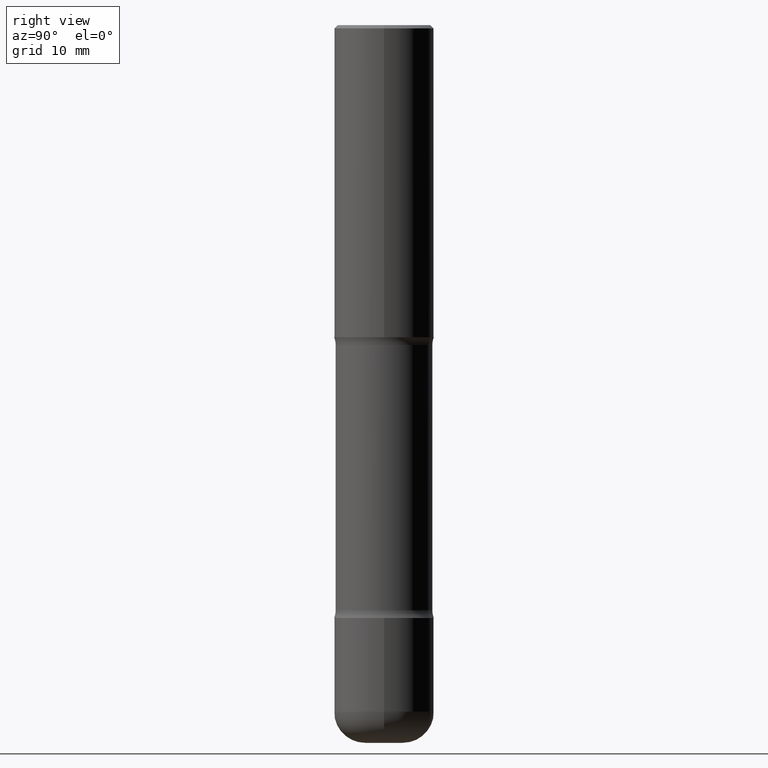
[diagram: clean part render]
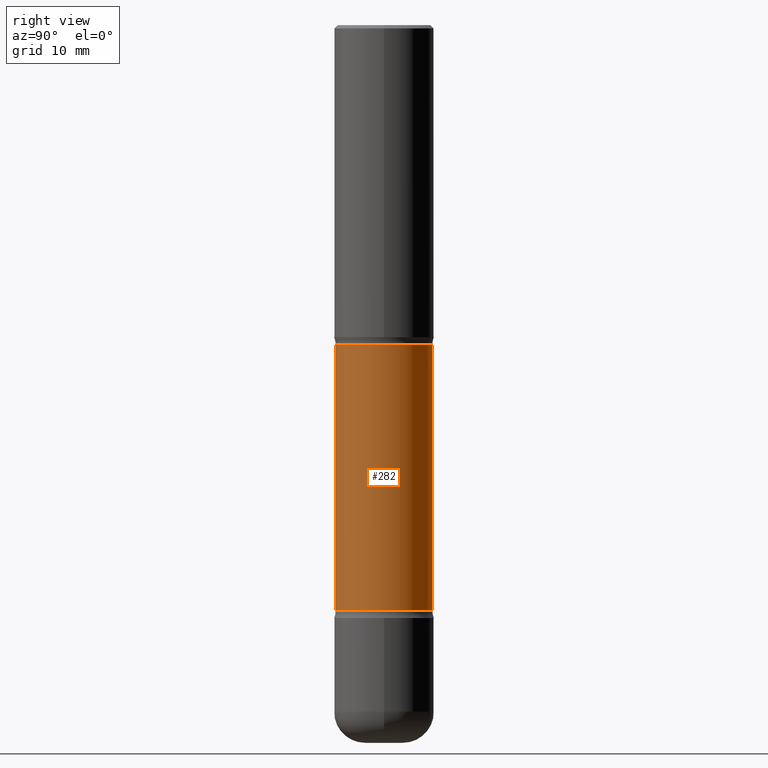
[diagram: same view with one face highlighted and labeled with its STEP entity id]
A machine part, right view. The second image highlights one B-rep face of the part: STEP entity #282.
In plain terms, the highlighted cylindrical surface (partial cylindrical patch) has radius 7.747 mm, axis along (0, -0, -1).
Its self-contained STEP definition (entity closure, byte-faithful):
#1 = EDGE_CURVE ( 'NONE', #179, #252, #18, .T. ) ;
#18 = CIRCLE ( 'NONE', #345, 0.3049999999999999378 ) ;
#64 = DIRECTION ( 'NONE',  ( 6.982962677686266711E-15, 1.000000000000000000, -3.582751467100674095E-15 ) ) ;
#65 = DIRECTION ( 'NONE',  ( 2.510864649412157880E-29, -3.397830769241806549E-15, -1.000000000000000000 ) ) ;
#93 = VERTEX_POINT ( 'NONE', #423 ) ;
#106 = ORIENTED_EDGE ( 'NONE', *, *, #364, .T. ) ;
#109 = FACE_OUTER_BOUND ( 'NONE', #273, .T. ) ;
#114 = CARTESIAN_POINT ( 'NONE',  ( 2.129803616694422103E-15, 0.3049999999999842282, -4.527600000000001401 ) ) ;
#145 = CIRCLE ( 'NONE', #462, 0.3049999999999999933 ) ;
#149 = DIRECTION ( 'NONE',  ( 2.510864649412157880E-29, -3.397830769241806549E-15, -1.000000000000000000 ) ) ;
#174 = ORIENTED_EDGE ( 'NONE', *, *, #1, .F. ) ;
#179 = VERTEX_POINT ( 'NONE', #443 ) ;
#195 = DIRECTION ( 'NONE',  ( 2.510864649412157600E-29, -3.397830769241806549E-15, -1.000000000000000000 ) ) ;
#197 = EDGE_CURVE ( 'NONE', #93, #261, #145, .T. ) ;
#223 = ORIENTED_EDGE ( 'NONE', *, *, #197, .T. ) ;
#233 = DIRECTION ( 'NONE',  ( 6.982962677686266711E-15, 1.000000000000000000, -3.582751467100674095E-15 ) ) ;
#252 = VERTEX_POINT ( 'NONE', #536 ) ;
#261 = VERTEX_POINT ( 'NONE', #410 ) ;
#271 = DIRECTION ( 'NONE',  ( 6.982962677686266711E-15, 1.000000000000000000, -3.582751467100673306E-15 ) ) ;
#273 = EDGE_LOOP ( 'NONE', ( #223, #106, #174, #352 ) ) ;
#275 = CARTESIAN_POINT ( 'NONE',  ( 4.820755151858623476E-29, -7.204961388123744804E-15, -2.017372256956273979 ) ) ;
#276 = CYLINDRICAL_SURFACE ( 'NONE', #471, 0.3049999999999999378 ) ;
#281 = VECTOR ( 'NONE', #195, 39.37007874015748143 ) ;
#282 = ADVANCED_FACE ( 'NONE', ( #109 ), #276, .T. ) ;
#335 = LINE ( 'NONE', #339, #534 ) ;
#339 = CARTESIAN_POINT ( 'NONE',  ( -2.092451889320205392E-15, -0.3050000000000157030, -4.527599999999998737 ) ) ;
#345 = AXIS2_PLACEMENT_3D ( 'NONE', #457, #65, #233 ) ;
#352 = ORIENTED_EDGE ( 'NONE', *, *, #378, .F. ) ;
#364 = EDGE_CURVE ( 'NONE', #261, #252, #335, .T. ) ;
#378 = EDGE_CURVE ( 'NONE', #93, #179, #504, .T. ) ;
#402 = DIRECTION ( 'NONE',  ( 2.510864649412157880E-29, -3.397830769241806549E-15, -1.000000000000000000 ) ) ;
#405 = CARTESIAN_POINT ( 'NONE',  ( 1.112359725384078225E-28, -1.573429045124212958E-14, -4.527600000000000513 ) ) ;
#410 = CARTESIAN_POINT ( 'NONE',  ( -2.126582866859183647E-15, -0.3050000000000072098, -2.017372256956272647 ) ) ;
#423 = CARTESIAN_POINT ( 'NONE',  ( 2.129803616694359388E-15, 0.3049999999999927769, -2.017372256956274867 ) ) ;
#443 = CARTESIAN_POINT ( 'NONE',  ( 2.129803616694401198E-15, 0.3049999999999870592, -3.691327743043728127 ) ) ;
#457 = CARTESIAN_POINT ( 'NONE',  ( 9.023830806565153848E-29, -1.289277884509281722E-14, -3.691327743043726795 ) ) ;
#462 = AXIS2_PLACEMENT_3D ( 'NONE', #275, #402, #271 ) ;
#471 = AXIS2_PLACEMENT_3D ( 'NONE', #405, #149, #64 ) ;
#504 = LINE ( 'NONE', #114, #281 ) ;
#534 = VECTOR ( 'NONE', #553, 39.37007874015748143 ) ;
#536 = CARTESIAN_POINT ( 'NONE',  ( -2.126582866859139470E-15, -0.3050000000000128719, -3.691327743043725906 ) ) ;
#553 = DIRECTION ( 'NONE',  ( 2.510864649412157600E-29, -3.397830769241806549E-15, -1.000000000000000000 ) ) ;